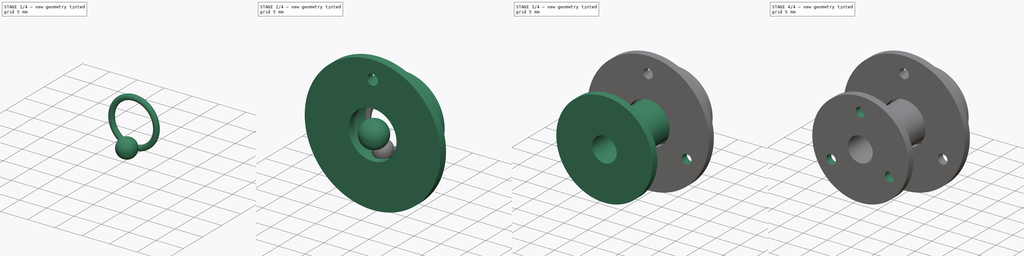
[diagram: build sequence overview — one tinted view per stage of 4, left to right]
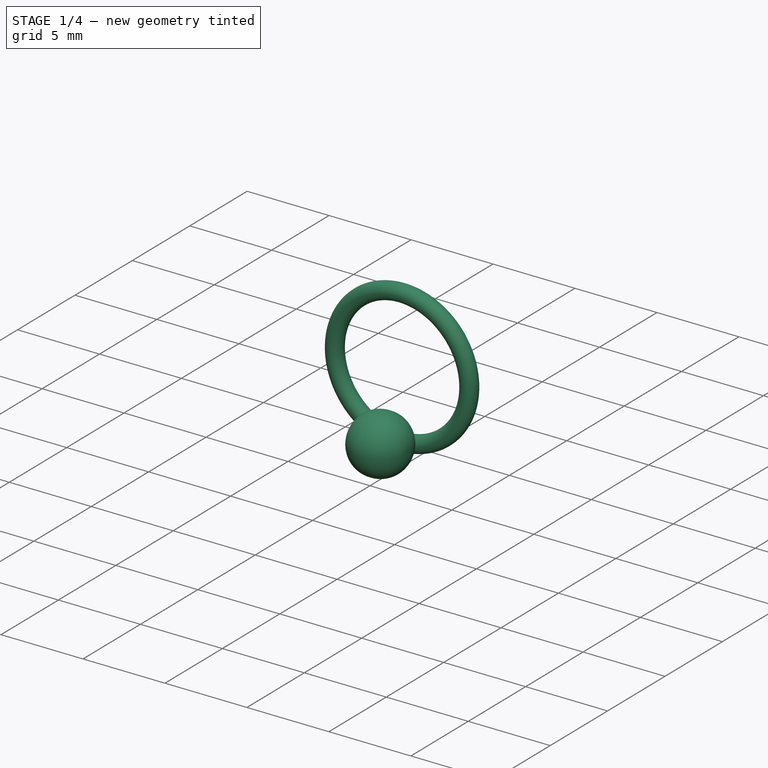
[diagram: stage 1 of 4 — iso view after this stage's code; geometry added in this stage tinted green]
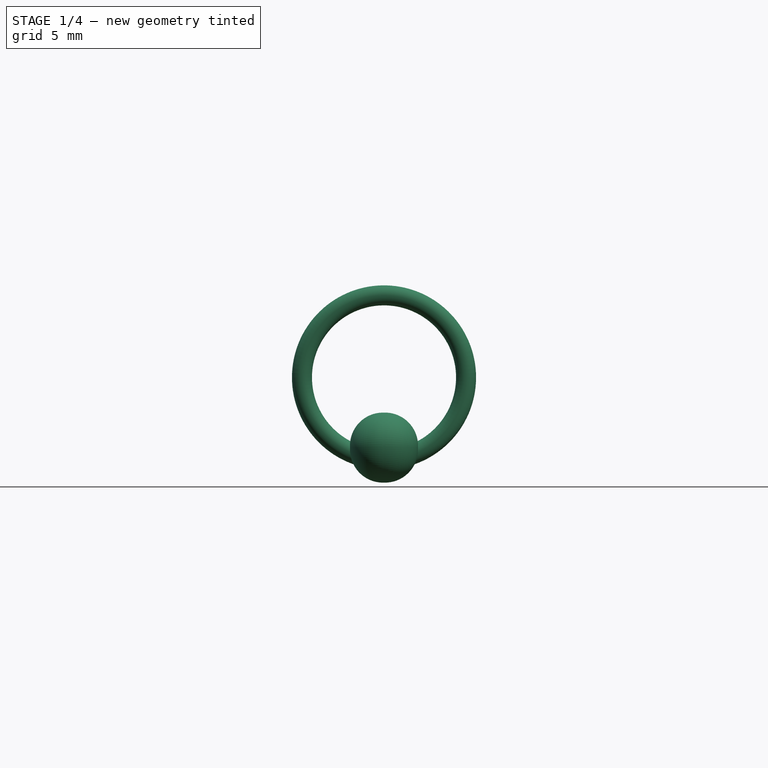
[diagram: stage 1 of 4 — front view after this stage's code; geometry added in this stage tinted green]
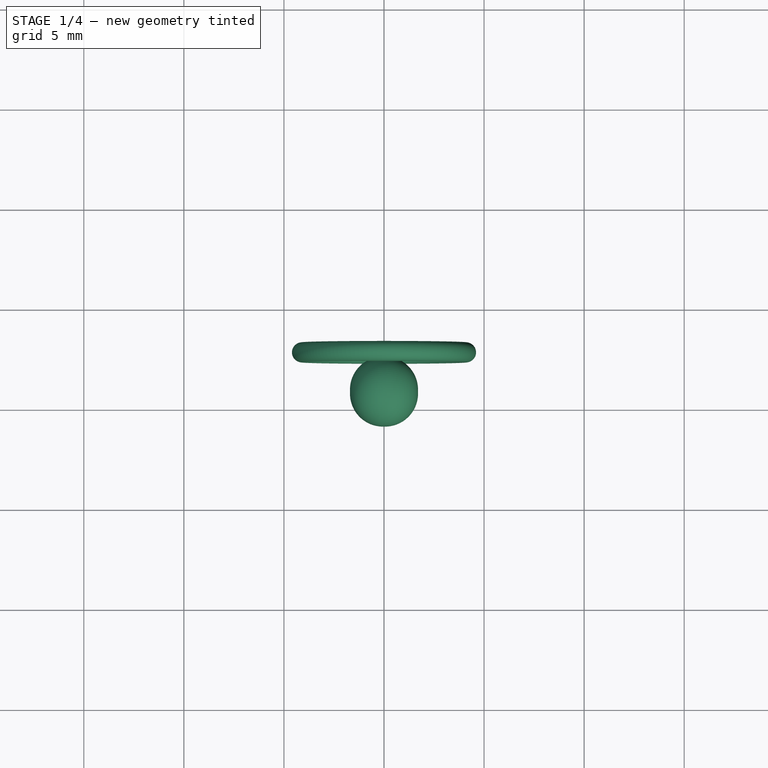
[diagram: stage 1 of 4 — top view after this stage's code; geometry added in this stage tinted green]
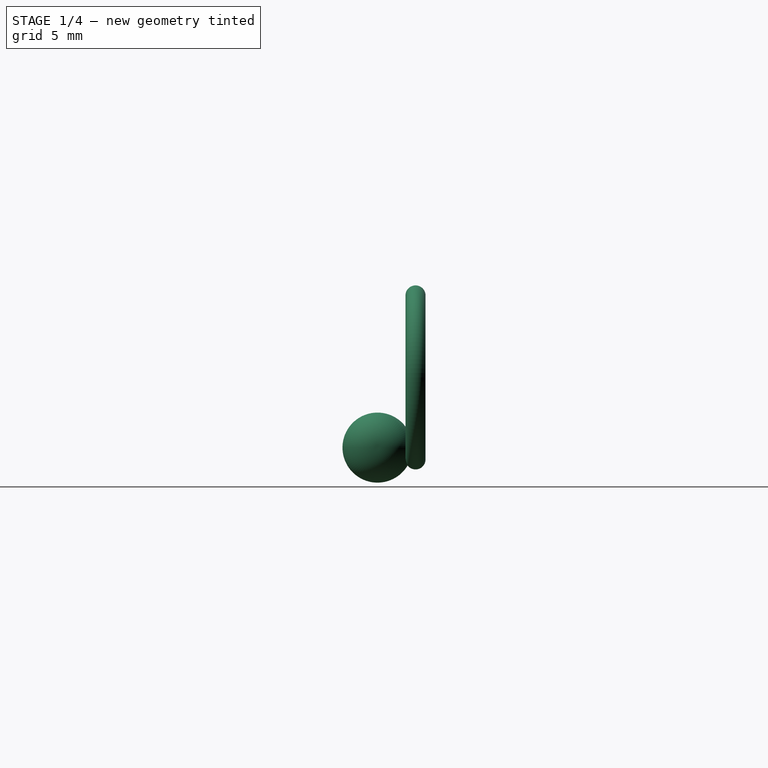
[diagram: stage 1 of 4 — right view after this stage's code; geometry added in this stage tinted green]
FCSTD DOCUMENT  (FreeCAD 0.19R24291 (Git))
Label: KUgelschieber
License: All rights reserved
LicenseURL: http://en.wikipedia.org/wiki/All_rights_reserved
objects: Sketcher::SketchObject×9, PartDesign::Body×5, PartDesign::Revolution×4, PartDesign::Pocket×3, PartDesign::PolarPattern×3, PartDesign::Pad×1, PartDesign::Fillet×1, Spreadsheet::Sheet×1
note: 35 computed .brp shape members not serialized (recipe doc carries the construction recipe); baked Part::Feature solids carry a one-line shape summary decoded from their .brp

FEATURE [PartDesign::Body] Body002  label="Kugel"
  Group = -> [Sketch005,Revolution002]
  Origin = -> Origin002
  Tip = -> Revolution002
FEATURE [Sketcher::SketchObject] Sketch006
  FullyConstrained = true
  MapMode = 5
  Placement = pos=(0,0,0) rot=(0.57735,0.57735,0.57735;2.0944rad)
  Support = -> [YZ_Plane003]
  expr: Constraints[4] = <<hauptkoerper>>.Constraints.staerke / 2 + 1mm
  expr: Constraints[3] = Sketch.Constraints.stift_laenge - Sketch.Constraints.kugel_dm / 2 - 0.1mm - Sketch.Constraints.staerke
  expr: Constraints[1] = <<hauptkoerper>>.Constraints.kugel_dm
  expr: .Constraints.abstand = <<Kugelsk>>.Constraints.abstand
  sketch-geometry (3):
    g0: ArcOfCircle CenterX=13.5 CenterY=0 CenterZ=0 NormalX=0 NormalY=0 NormalZ=1 AngleXU=0 Radius=2.5 StartAngle=3.14159 EndAngle=6.28319
    g1: Circle CenterX=15.9 CenterY=-3.50749 CenterZ=0 NormalX=0 NormalY=0 NormalZ=1 AngleXU=0 Radius=1.75
    g2: LineSegment StartX=11 StartY=0 StartZ=0 EndX=16 EndY=0 EndZ=0
  constraints (10):
    c: PointOnObject(g0,g-1)
    c: Diameter(g0) = 5
    c: Tangent(g0,g1)
    c: DistanceX(g-1,g1) = 15.9
    c: Radius(g1) = 1.75
    c: DistanceX(g-1,g0) = 13.5  'abstand'
    c: Horizontal(g2)
    c: Coincident(g0,g2)
    c: Coincident(g0,g2)
    c: PointOnObject(g0,g-1)
FEATURE [PartDesign::Pad] Pad
  Direction = (1,1,1)
  Length = 3.4
  Length2 = 100
  Midplane = true
  Placement = pos=(0,0,0) rot=(0.57735,0.57735,0.57735;2.0944rad)
  Profile = -> Sketch006
  Refine = true
  Type = 0
  expr: Length = (<<hauptkoerper>>.Constraints.staerke / 2 + 1mm) * 2 - 0.1mm
FEATURE [PartDesign::Fillet] Fillet
  Base = -> Pad [Edge2,Edge3]
  BaseFeature = -> Pad
  Placement = pos=(0,0,0) rot=(0.57735,0.57735,0.57735;2.0944rad)
  Radius = 1.65
  Refine = true
  SupportTransform = false
  expr: Radius = <<hauptkoerper>>.Constraints.staerke / 2 + 1mm - 0.1mm
FEATURE [PartDesign::Body] Body003  label="rastkugel"
  Group = -> [Sketch006,Pad,Fillet]
  Origin = -> Origin003
  Tip = -> Fillet
FEATURE [Sketcher::SketchObject] Sketch008
  FullyConstrained = true
  MapMode = 5
  Placement = pos=(0,0,0) rot=(0.57735,0.57735,0.57735;2.0944rad)
  Support = -> [YZ_Plane001]
FEATURE [PartDesign::Body] Body001  label="kugelrastung"
  Group = -> [Sketch003,Revolution001,Sketch004,Pocket002,PolarPattern002,Sketch008]
  Origin = -> Origin001
  Tip = -> PolarPattern002
FEATURE [Sketcher::SketchObject] Sketch009
  FullyConstrained = true
  MapMode = 5
  Support = -> [XY_Plane004]
  expr: Constraints[0] = <<hauptkoerper>>.Constraints.oRingdm
  expr: Constraints[1] = <<hauptkoerper>>.Constraints.staerke + <<hauptkoerper>>.Constraints.kugel_dm / 2 + 0.1mm
  expr: Constraints[2] = <<hauptkoerper>>.Constraints.stift_laenge - <<hauptkoerper>>.Constraints.staerke - 0.2mm - <<hauptkoerper>>.Constraints.oRingdm / 2
  sketch-geometry (1):
    g0: Circle CenterX=4.1 CenterY=17.8 CenterZ=0 NormalX=0 NormalY=0 NormalZ=1 AngleXU=0 Radius=0.5
  constraints (3):
    c: Diameter(g0) = 1
    c: DistanceX(g-1,g0) = 4.1
    c: DistanceY(g-1,g0) = 17.8
FEATURE [PartDesign::Revolution] Revolution003
  Angle = 360
  Axis = (0,1,0)
  Base = (0,0,0)
  Profile = -> Sketch009
  ReferenceAxis = -> Sketch009 [V_Axis]
  Refine = true
  Reversed = true
FEATURE [PartDesign::Body] Body004  label="oRing"
  Group = -> [Sketch009,Revolution003]
  Origin = -> Origin004
  Tip = -> Revolution003
FEATURE [Spreadsheet::Sheet] Spreadsheet  label="werte"
  cells = A2=Kugelabstand; B2(abstand)==13.5mm; A3=Staerke; B3(staerke)==1.5mm; A4=Laenge; B4(laenge)==20mm; A5=Kugeldurchmesser; B5(Durchmesser)==5mm
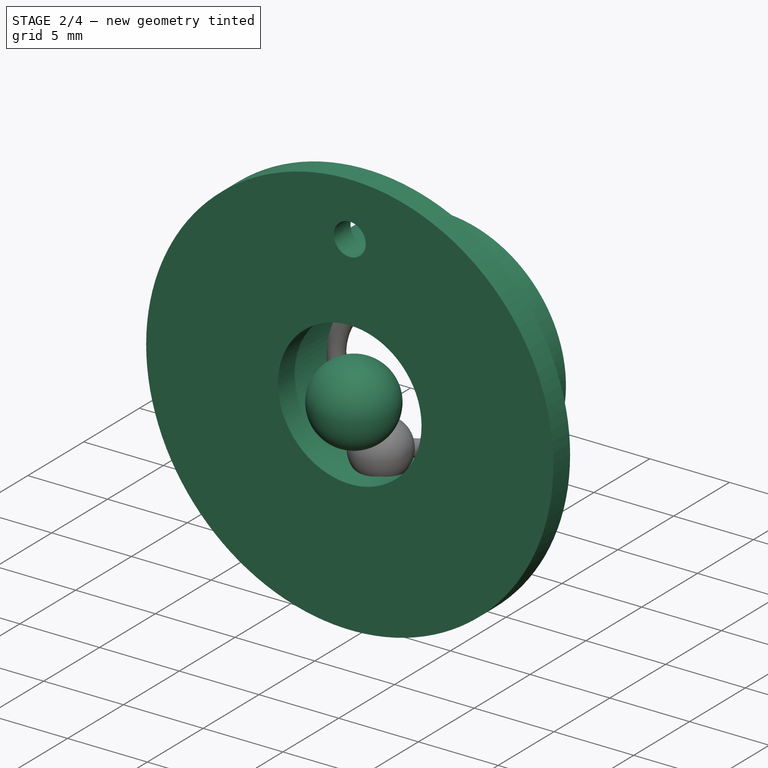
[diagram: stage 2 of 4 — iso view after this stage's code; geometry added in this stage tinted green]
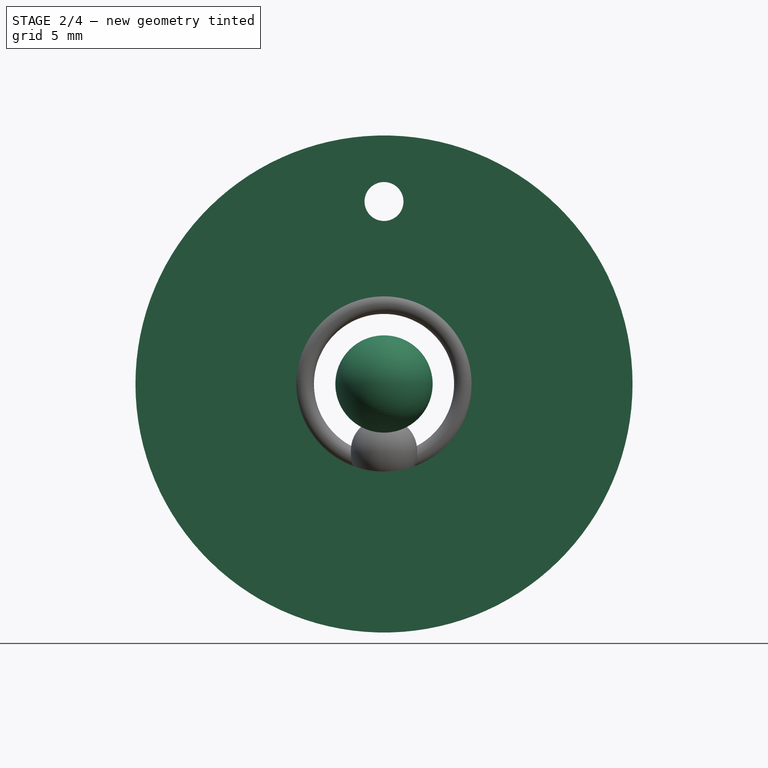
[diagram: stage 2 of 4 — front view after this stage's code; geometry added in this stage tinted green]
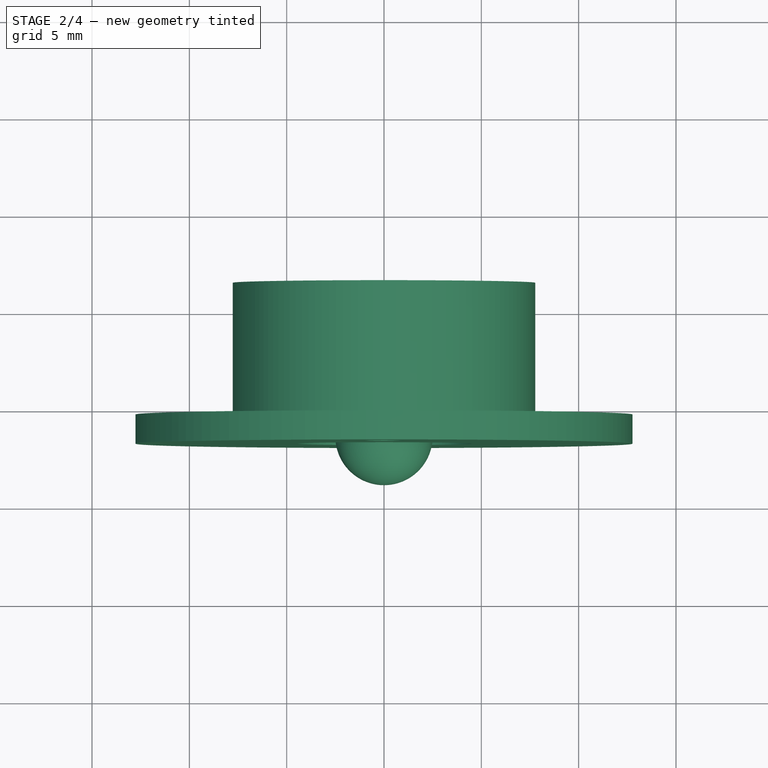
[diagram: stage 2 of 4 — top view after this stage's code; geometry added in this stage tinted green]
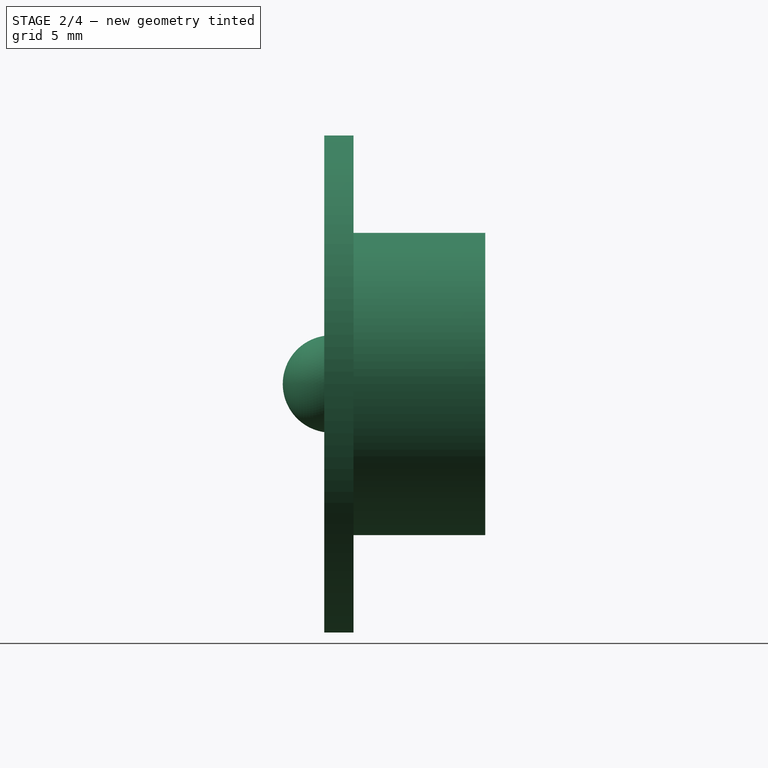
[diagram: stage 2 of 4 — right view after this stage's code; geometry added in this stage tinted green]
FEATURE [PartDesign::Body] Body  label="kugelaufnahme"
  Group = -> [Sketch,Revolution,Sketch001,Pocket,PolarPattern,Sketch002,Pocket001,PolarPattern001]
  Origin = -> Origin
  Tip = -> PolarPattern001
FEATURE [Sketcher::SketchObject] Sketch003
  FullyConstrained = true
  MapMode = 5
  Support = -> [XY_Plane001]
  expr: Constraints[11] = <<hauptkoerper>>.Constraints.staerke
  expr: Constraints[19] = <<hauptkoerper>>.Constraints.kugel_dm / 2
  expr: Constraints[23] = <<hauptkoerper>>.Constraints.kugel_dm
  expr: Constraints[18] = <<hauptkoerper>>.Constraints.staerke + <<hauptkoerper>>.Constraints.kugel_dm / 2 + 0.5mm
  expr: Constraints[16] = Sketch.Constraints.stift_laenge - Sketch.Constraints.kugel_dm / 2 - 0.1mm - Sketch.Constraints.staerke + 0.5mm
  expr: Constraints[21] = <<hauptkoerper>>.Constraints.staerke
  sketch-geometry (8):
    g0: LineSegment StartX=4.5 StartY=14.6322 StartZ=0 EndX=4.5 EndY=13.1322 EndZ=0
    g1: LineSegment StartX=4.5 StartY=13.1322 StartZ=0 EndX=12.7678 EndY=13.1322 EndZ=0
    g2: LineSegment StartX=12.7678 StartY=13.1322 StartZ=0 EndX=12.7678 EndY=14.6322 EndZ=0
    g3: LineSegment StartX=12.7678 StartY=14.6322 StartZ=0 EndX=7.76777 EndY=14.6322 EndZ=0
    g4: LineSegment StartX=7.76777 StartY=14.6322 StartZ=0 EndX=7.76777 EndY=21.4 EndZ=0
    g5: LineSegment StartX=6.26777 StartY=21.4 StartZ=0 EndX=7.76777 EndY=21.4 EndZ=0
    g6: LineSegment StartX=4.5 StartY=14.6322 StartZ=0 EndX=6.26777 EndY=16.4 EndZ=0
    g7: LineSegment StartX=6.26777 StartY=16.4 StartZ=0 EndX=6.26777 EndY=21.4 EndZ=0
  constraints (24):
    c: Vertical(g0)
    c: Horizontal(g1)
    c: Coincident(g1,g2)
    c: Coincident(g2,g3)
    c: Horizontal(g3)
    c: Coincident(g3,g4)
    c: Vertical(g4)
    c: Equal(g0,g2)
    c: Perpendicular(g3,g2)
    c: Coincident(g5,g4)
    c: Horizontal(g5)
    c: DistanceY(g0,g0) = 1.5
    c: Coincident(g6,g0)
    c: Coincident(g7,g6)
    c: Vertical(g7)
    c: Coincident(g5,g7)
    c: DistanceY(g-1,g6) = 16.4
    c: Angle(g7,g6) = 2.35619
    c: DistanceX(g-2,g0) = 4.5
    c: Distance(g6) = 2.5
    c: Equal(g7,g3)
    c: Distance(g5) = 1.5
    c: Coincident(g0,g1)
    c: Distance(g3) = 5
FEATURE [PartDesign::Revolution] Revolution001
  Angle = 360
  Axis = (0,1,0)
  Base = (0,0,0)
  Profile = -> Sketch003
  ReferenceAxis = -> Sketch003 [V_Axis]
  Refine = true
  Reversed = true
FEATURE [Sketcher::SketchObject] Sketch004
  FullyConstrained = true
  MapMode = 5
  Placement = pos=(0,0,0) rot=(1,0,0;1.5708rad)
  Support = -> [XZ_Plane001]
  expr: Constraints[1] = <<hauptkoerper>>.Constraints.staerke + <<hauptkoerper>>.Constraints.kugel_dm / 2 + 0.5mm + (<<hauptkoerper>>.Constraints.staerke / 2 + 1mm + <<hauptkoerper>>.Constraints.staerke) * 1.5
  expr: Constraints[2] = <<Sketch002>>.Constraints.durchmesser
  sketch-geometry (1):
    g0: Circle CenterX=0 CenterY=9.375 CenterZ=0 NormalX=0 NormalY=0 NormalZ=1 AngleXU=0 Radius=1
  constraints (3):
    c: PointOnObject(g0,g-2)
    c: DistanceY(g-1,g0) = 9.375
    c: Diameter(g0) = 2
FEATURE [PartDesign::Pocket] Pocket002
  BaseFeature = -> Revolution001
  Length = 5
  Length2 = 100
  Profile = -> Sketch004
  Refine = true
  Type = 1
FEATURE [Sketcher::SketchObject] Sketch005  label="Kugelsk"
  FullyConstrained = true
  MapMode = 5
  Placement = pos=(0,0,0) rot=(0.57735,0.57735,0.57735;2.0944rad)
  Support = -> [YZ_Plane002]
  expr: Constraints[1] = <<hauptkoerper>>.Constraints.kugel_dm
  expr: Constraints[3] = Sketch.Constraints.stift_laenge - Sketch.Constraints.kugel_dm / 2 - 0.1mm - Sketch.Constraints.staerke
  expr: Constraints[4] = <<hauptkoerper>>.Constraints.staerke / 2 + 1mm
  expr: .Constraints.abstand = <<werte>>.abstand
  sketch-geometry (3):
    g0: ArcOfCircle CenterX=13.5 CenterY=0 CenterZ=0 NormalX=0 NormalY=0 NormalZ=1 AngleXU=0 Radius=2.5 StartAngle=3.14159 EndAngle=6.28319
    g1: Circle CenterX=15.9 CenterY=-3.50749 CenterZ=0 NormalX=0 NormalY=0 NormalZ=1 AngleXU=0 Radius=1.75
    g2: LineSegment StartX=11 StartY=0 StartZ=0 EndX=16 EndY=0 EndZ=0
  constraints (10):
    c: PointOnObject(g0,g-1)
    c: Diameter(g0) = 5
    c: Tangent(g0,g1)
    c: DistanceX(g-1,g1) = 15.9
    c: Radius(g1) = 1.75
    c: DistanceX(g-1,g0) = 13.5  'abstand'
    c: Horizontal(g2)
    c: Coincident(g0,g2)
    c: Coincident(g0,g2)
    c: PointOnObject(g0,g-1)
FEATURE [PartDesign::Revolution] Revolution002
  Angle = 360
  Axis = (1e-16,1,-1e-16)
  Base = (0,0,0)
  Placement = pos=(0,0,0) rot=(0.57735,0.57735,0.57735;2.0944rad)
  Profile = -> Sketch005
  ReferenceAxis = -> Y_Axis002
  Refine = true
  Reversed = true
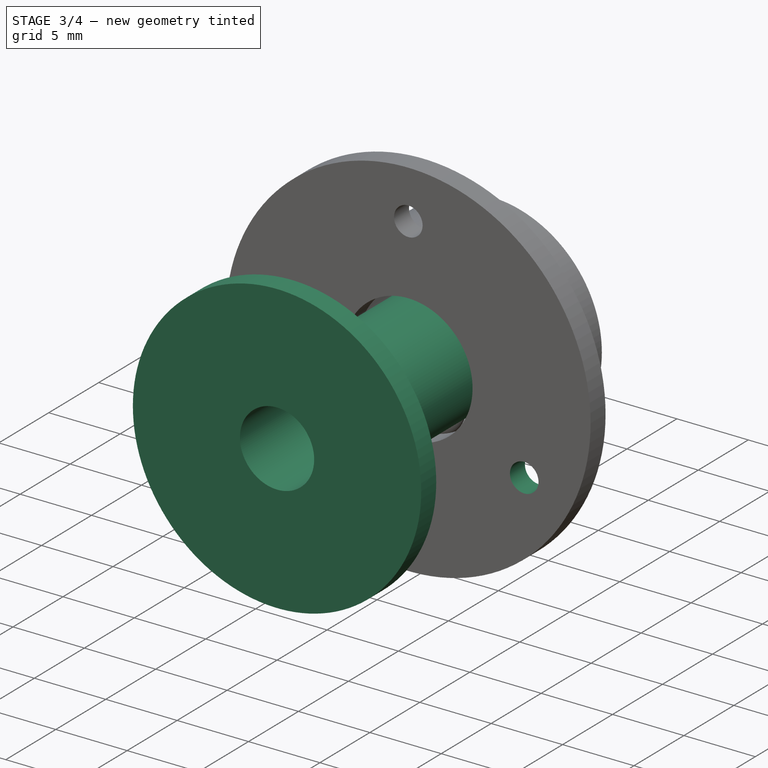
[diagram: stage 3 of 4 — iso view after this stage's code; geometry added in this stage tinted green]
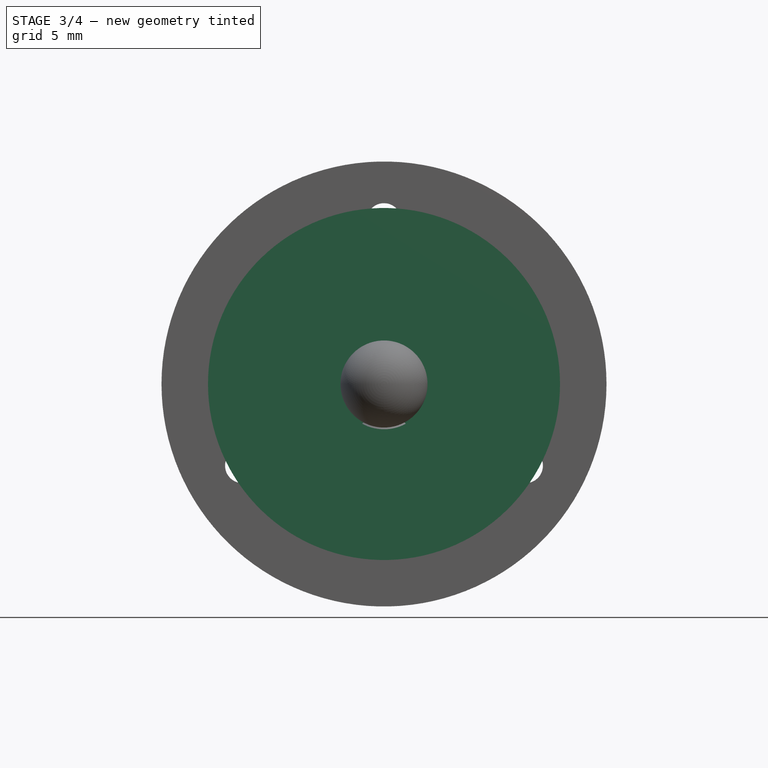
[diagram: stage 3 of 4 — front view after this stage's code; geometry added in this stage tinted green]
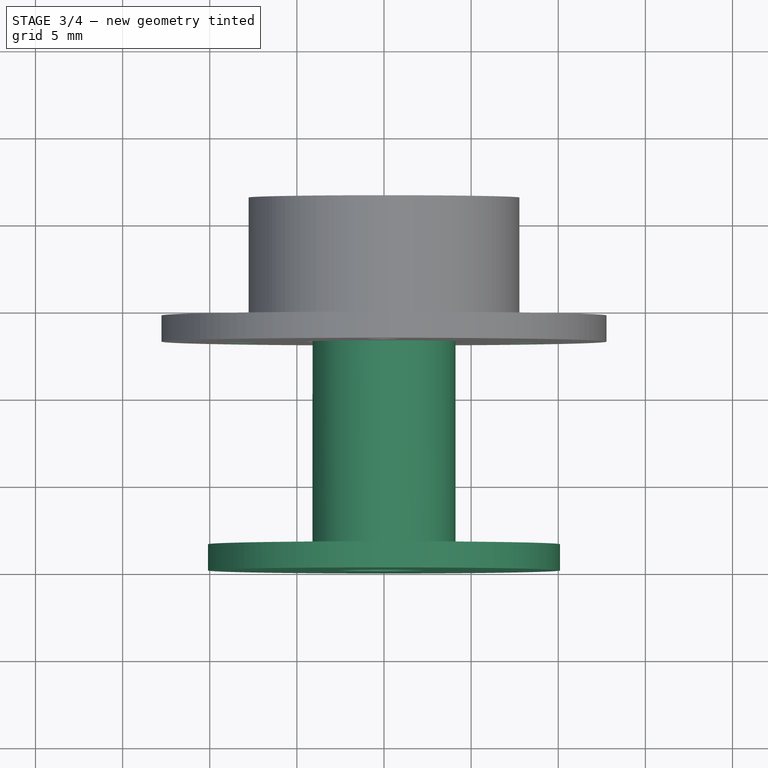
[diagram: stage 3 of 4 — top view after this stage's code; geometry added in this stage tinted green]
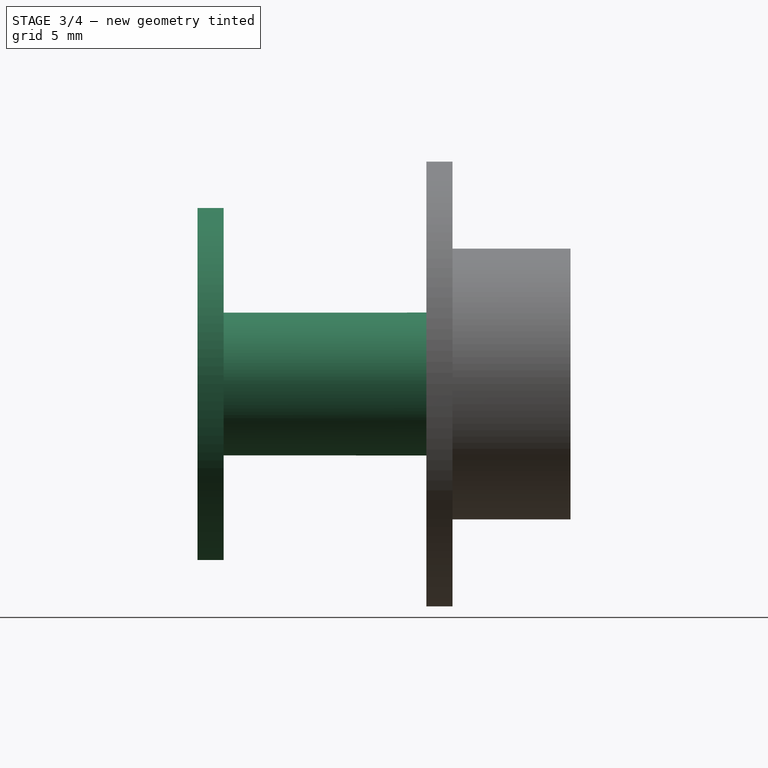
[diagram: stage 3 of 4 — right view after this stage's code; geometry added in this stage tinted green]
FEATURE [Sketcher::SketchObject] Sketch  label="hauptkoerper"
  FullyConstrained = true
  MapMode = 5
  Support = -> [XY_Plane]
  expr: Constraints[22] = .Constraints.kugel_dm / 2 + 0.1mm
  expr: Constraints[23] = .Constraints.kugel_dm / 2 + 0.1mm
  expr: Constraints[15] = .Constraints.staerke
  expr: Constraints[33] = .Constraints.staerke
  expr: Constraints[28] = .Constraints.staerke + 0.2mm
  expr: .Constraints.stift_laenge = <<werte>>.laenge
  expr: .Constraints.kugel_dm = <<werte>>.Durchmesser
  expr: .Constraints.staerke = <<werte>>.staerke
  sketch-geometry (11):
    g0: LineSegment StartX=0 StartY=20 StartZ=0 EndX=4.1 EndY=20 EndZ=0
    g1: LineSegment StartX=4.1 StartY=1.5 StartZ=0 EndX=10.1 EndY=1.5 EndZ=0
    g2: LineSegment StartX=10.1 StartY=1.5 StartZ=0 EndX=10.1 EndY=0 EndZ=0
    g3: LineSegment StartX=10.1 StartY=0 StartZ=0 EndX=2.6 EndY=0 EndZ=0
    g4: LineSegment StartX=2.6 StartY=0 StartZ=0 EndX=2.6 EndY=18.5 EndZ=0
    g5: LineSegment StartX=2.6 StartY=18.5 StartZ=0 EndX=0 EndY=18.5 EndZ=0
    g6: LineSegment StartX=0 StartY=20 StartZ=0 EndX=0 EndY=18.5 EndZ=0
    g7: Circle CenterX=0 CenterY=15.9 CenterZ=0 NormalX=0 NormalY=0 NormalZ=1 AngleXU=0 Radius=2.5
    g8: LineSegment StartX=4.1 StartY=20 StartZ=0 EndX=4.1 EndY=18.3 EndZ=0
    g9: LineSegment StartX=4.1 StartY=17.3 StartZ=0 EndX=4.1 EndY=1.5 EndZ=0
    g10: ArcOfCircle CenterX=4.1 CenterY=17.8 CenterZ=0 NormalX=0 NormalY=0 NormalZ=1 AngleXU=0 Radius=0.5 StartAngle=1.5708 EndAngle=4.71239
  constraints (34):
    c: Horizontal(g1)
    c: Coincident(g1,g2)
    c: Vertical(g2)
    c: Coincident(g2,g3)
    c: Horizontal(g3)
    c: Coincident(g3,g4)
    c: Vertical(g4)
    c: Coincident(g4,g5)
    c: Coincident(g6,g0)
    c: Coincident(g6,g5)
    c: Vertical(g6)
    c: PointOnObject(g0,g-2)
    c: DistanceY(g5,g0) = 1.5  'staerke'
    c: Perpendicular(g6,g5)
    c: Perpendicular(g6,g0)
    c: DistanceX(g4,g0) = 1.5
    c: Equal(g2,g6)
    c: PointOnObject(g3,g-1)
    c: Distance(g-1,g0) = 20  'stift_laenge'
    c: DistanceX(g0,g1) = 6
    c: PointOnObject(g7,g-2)
    c: Diameter(g7) = 5  'kugel_dm'
    c: Distance(g5,g7) = 2.6
    c: Distance(g5) = 2.6
    c: Coincident(g0,g8)
    c: Vertical(g8)
    c: Coincident(g9,g1)
    c: Vertical(g9)
    c: Distance(g8) = 1.7
    c: Coincident(g10,g8)
    c: Coincident(g10,g9)
    c: Diameter(g10) = 1  'oRingdm'
    c: Angle(g10) = 3.14159
    c: DistanceX(g4,g10) = 1.5
FEATURE [PartDesign::Revolution] Revolution  label="hauptkoerper_shape"
  Angle = 360
  Axis = (0,1,0)
  Base = (0,0,0)
  Profile = -> Sketch
  ReferenceAxis = -> Sketch [V_Axis]
  Refine = true
  Reversed = true
FEATURE [Sketcher::SketchObject] Sketch001
  FullyConstrained = true
  MapMode = 5
  Support = -> [XY_Plane]
  expr: .Constraints.Kugelbohrung = Sketch.Constraints.stift_laenge - Sketch.Constraints.kugel_dm / 2 - 0.1mm - Sketch.Constraints.staerke
  expr: Constraints[1] = <<hauptkoerper>>.Constraints.staerke / 2 + 1mm
  sketch-geometry (1):
    g0: Circle CenterX=0 CenterY=15.9 CenterZ=0 NormalX=0 NormalY=0 NormalZ=1 AngleXU=0 Radius=1.75
  constraints (3):
    c: PointOnObject(g0,g-2)
    c: Radius(g0) = 1.75
    c: Distance(g0,g-1) = 15.9  'Kugelbohrung'
FEATURE [PartDesign::Pocket] Pocket
  BaseFeature = -> Revolution
  Length = 0
  Length2 = 100
  Profile = -> Sketch001
  Refine = true
  Type = 1
FEATURE [PartDesign::PolarPattern] PolarPattern002
  Angle = 360
  Axis = -> Sketch004 [N_Axis]
  BaseFeature = -> Pocket002
  Occurrences = 3
  Originals = -> [Pocket002]
  Refine = true
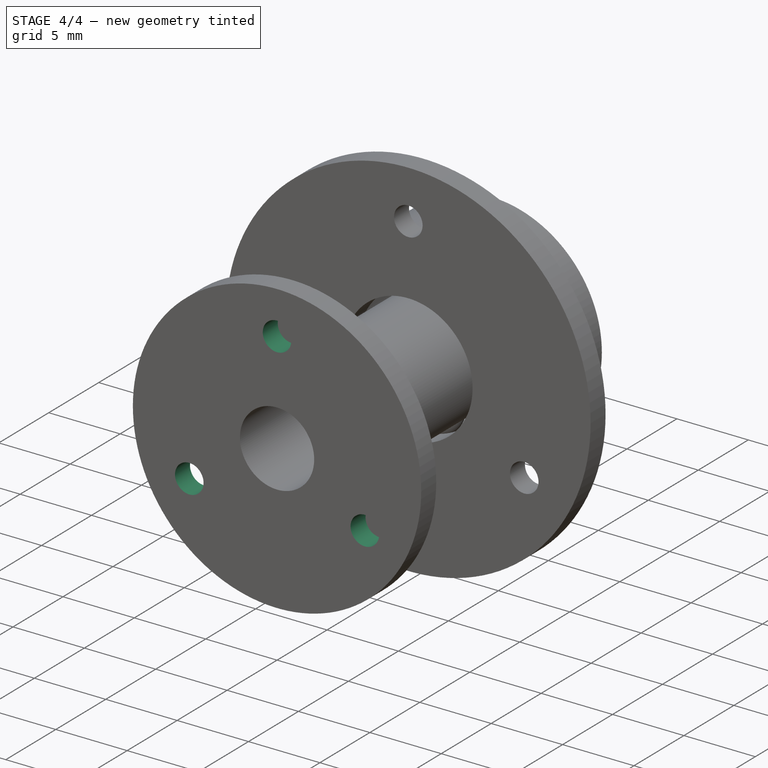
[diagram: stage 4 of 4 — iso view after this stage's code; geometry added in this stage tinted green]
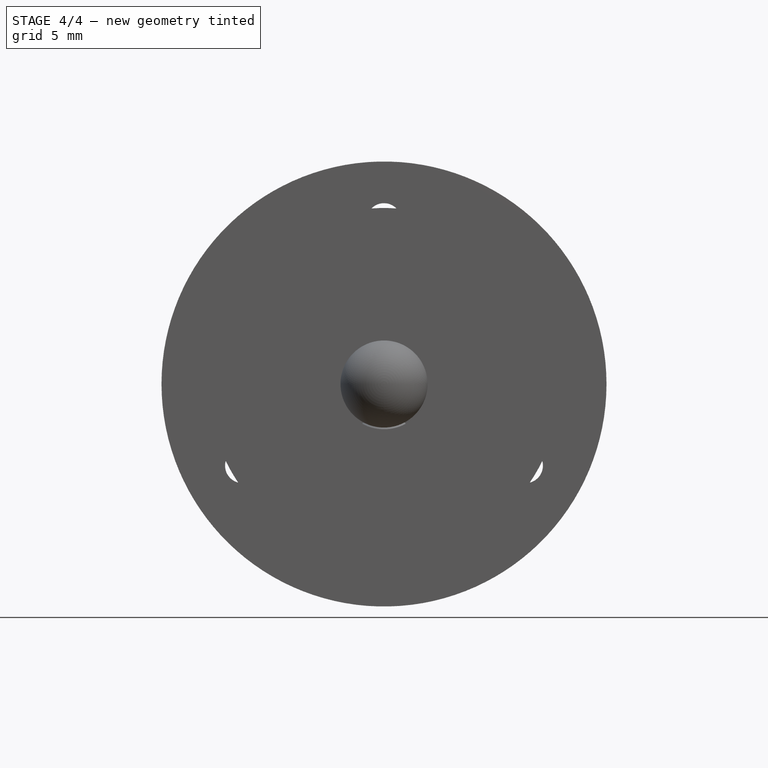
[diagram: stage 4 of 4 — front view after this stage's code; geometry added in this stage tinted green]
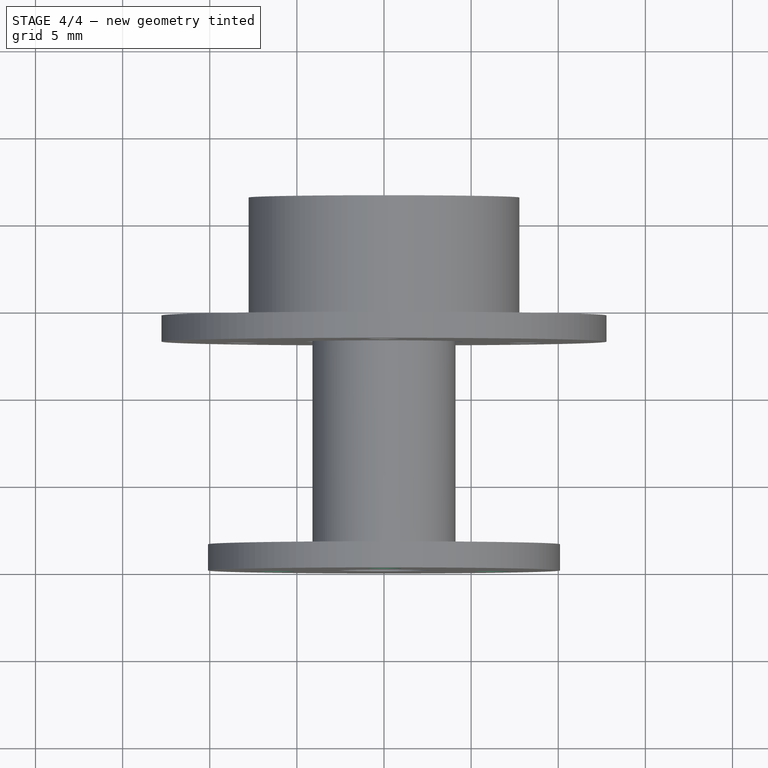
[diagram: stage 4 of 4 — top view after this stage's code; geometry added in this stage tinted green]
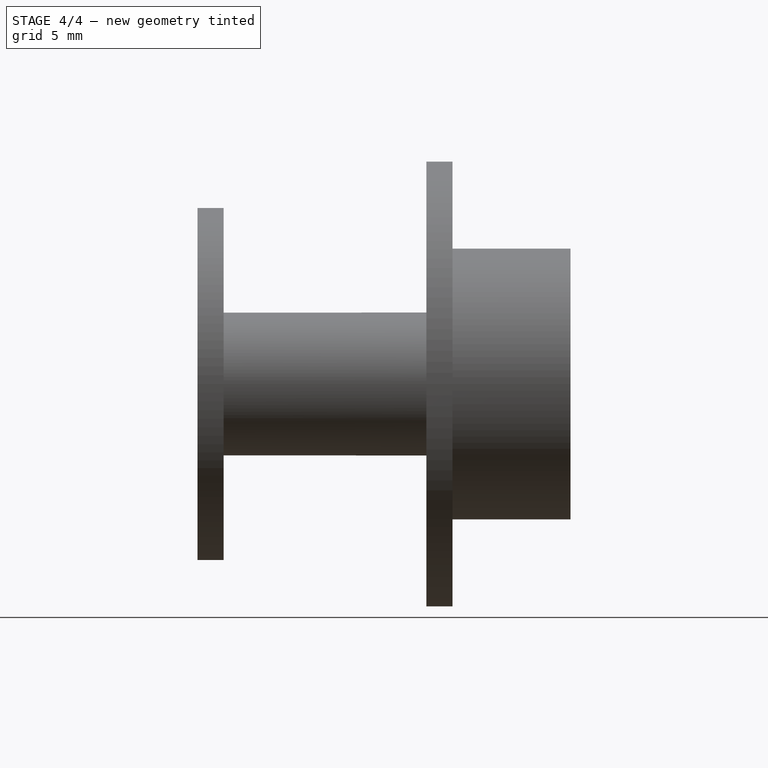
[diagram: stage 4 of 4 — right view after this stage's code; geometry added in this stage tinted green]
FEATURE [PartDesign::PolarPattern] PolarPattern
  Angle = 360
  Axis = -> Y_Axis
  BaseFeature = -> Pocket
  Occurrences = 3
  Originals = -> [Pocket]
  Refine = true
FEATURE [Sketcher::SketchObject] Sketch002
  FullyConstrained = true
  MapMode = 5
  Placement = pos=(0,0,0) rot=(1,0,0;1.5708rad)
  Support = -> [XZ_Plane]
  expr: Constraints[1] = Sketch.Constraints.kugel_dm / 2 + 0.1mm + 6mm / 2 + Sketch.Constraints.staerke
  sketch-geometry (1):
    g0: Circle CenterX=0 CenterY=7.1 CenterZ=0 NormalX=0 NormalY=0 NormalZ=1 AngleXU=0 Radius=1
  constraints (3):
    c: PointOnObject(g0,g-2)
    c: Distance(g-1,g0) = 7.1
    c: Diameter(g0) = 2  'durchmesser'
FEATURE [PartDesign::Pocket] Pocket001
  BaseFeature = -> PolarPattern
  Length = 5
  Length2 = 100
  Profile = -> Sketch002
  Refine = true
  Type = 0
FEATURE [PartDesign::PolarPattern] PolarPattern001
  Angle = 360
  Axis = -> Sketch002 [N_Axis]
  BaseFeature = -> Pocket001
  Occurrences = 3
  Originals = -> [Pocket001]
  Refine = true
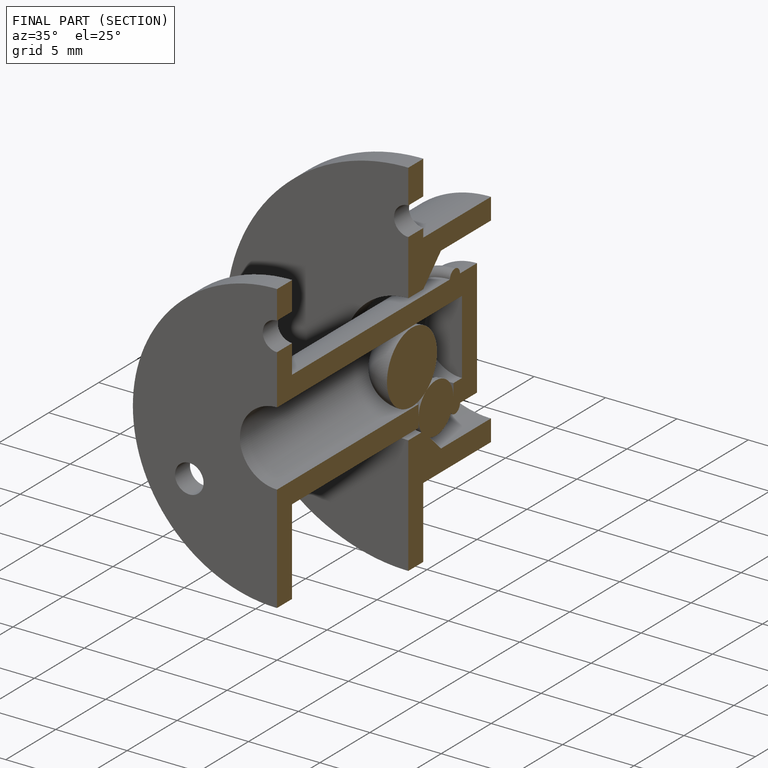
[diagram: finished part — half-section view (interior)]
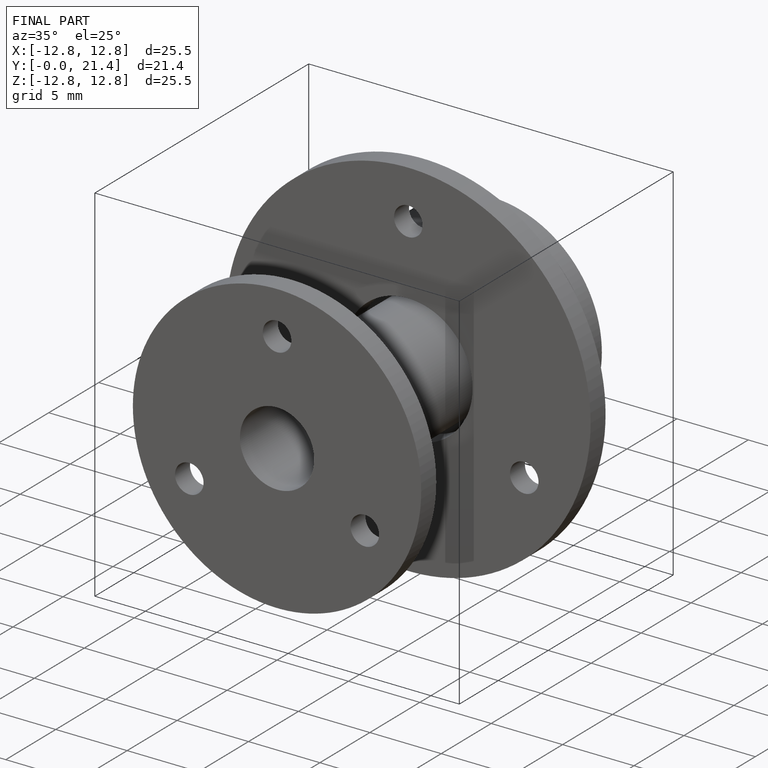
[diagram: finished part — iso view with bounding-box wireframe]
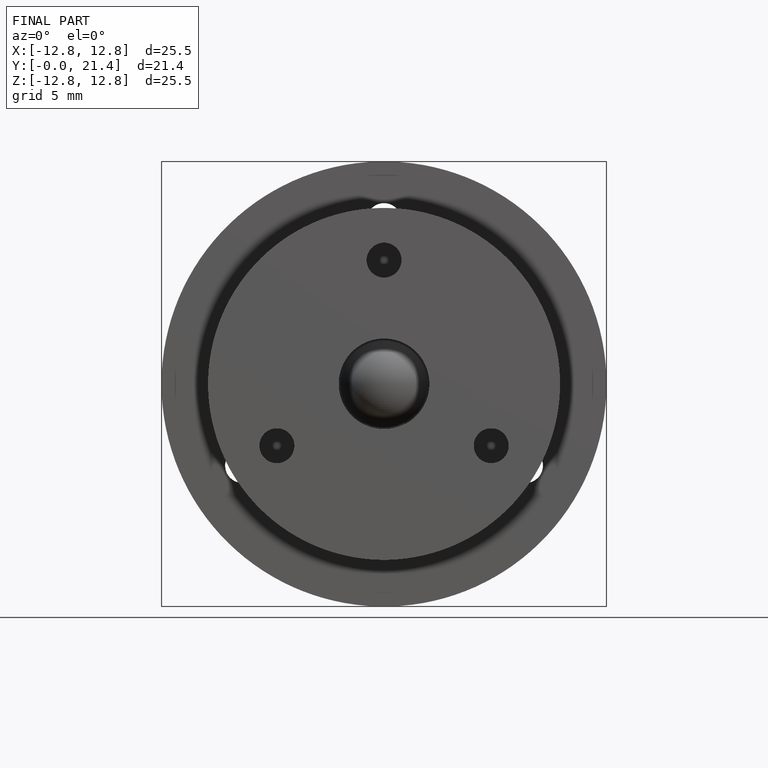
[diagram: finished part — front view with bounding-box wireframe]
